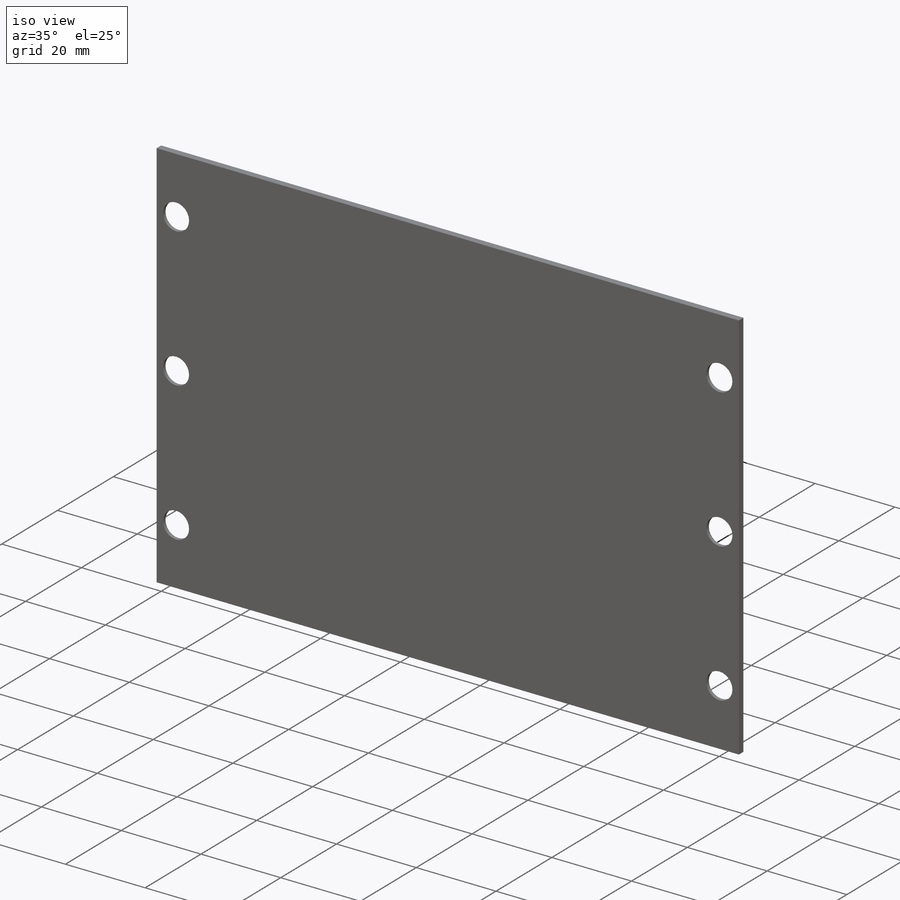
[diagram: iso view]
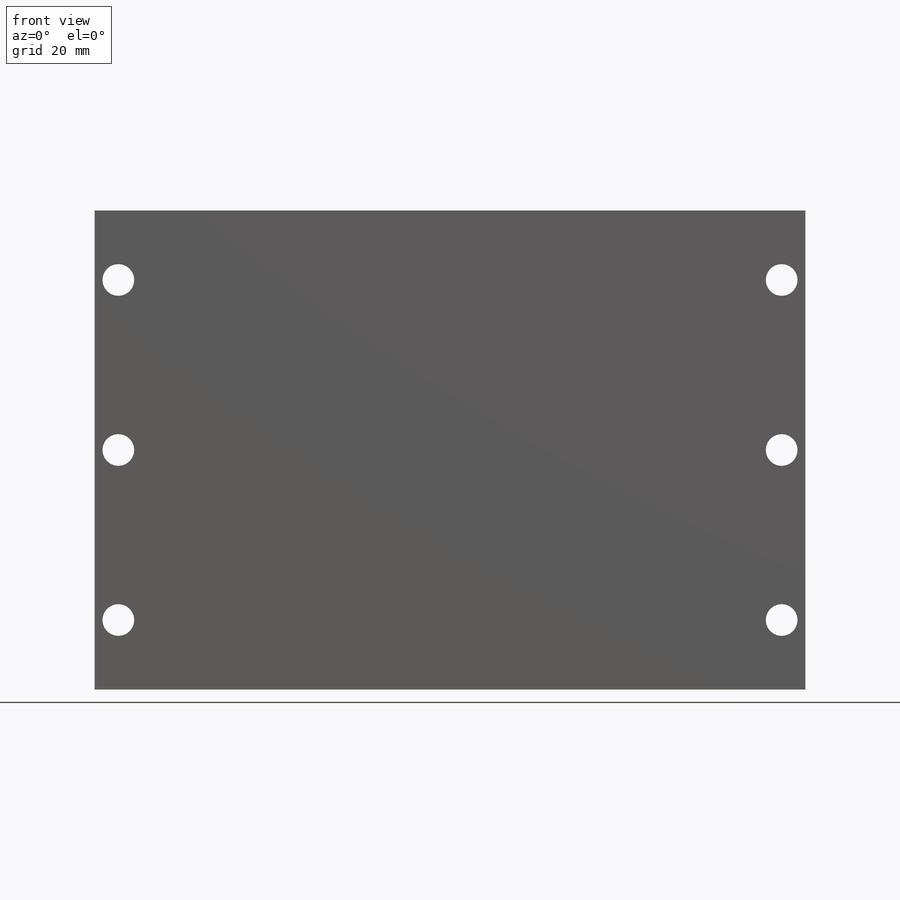
[diagram: front view]
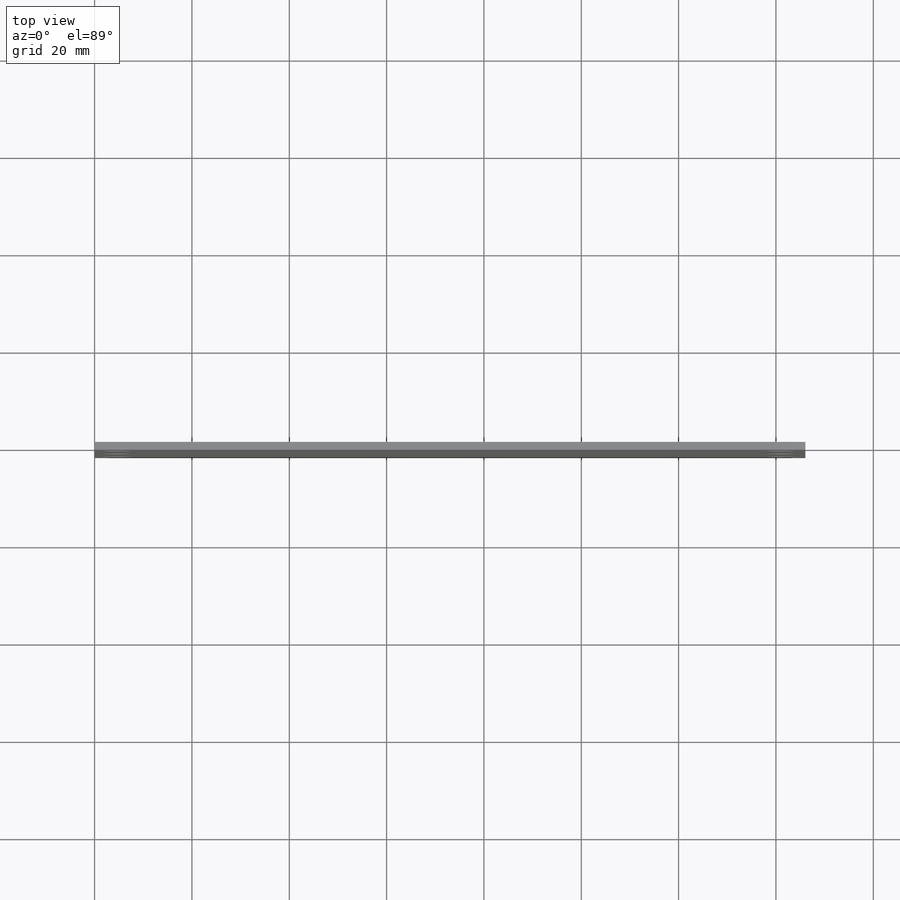
[diagram: top view]
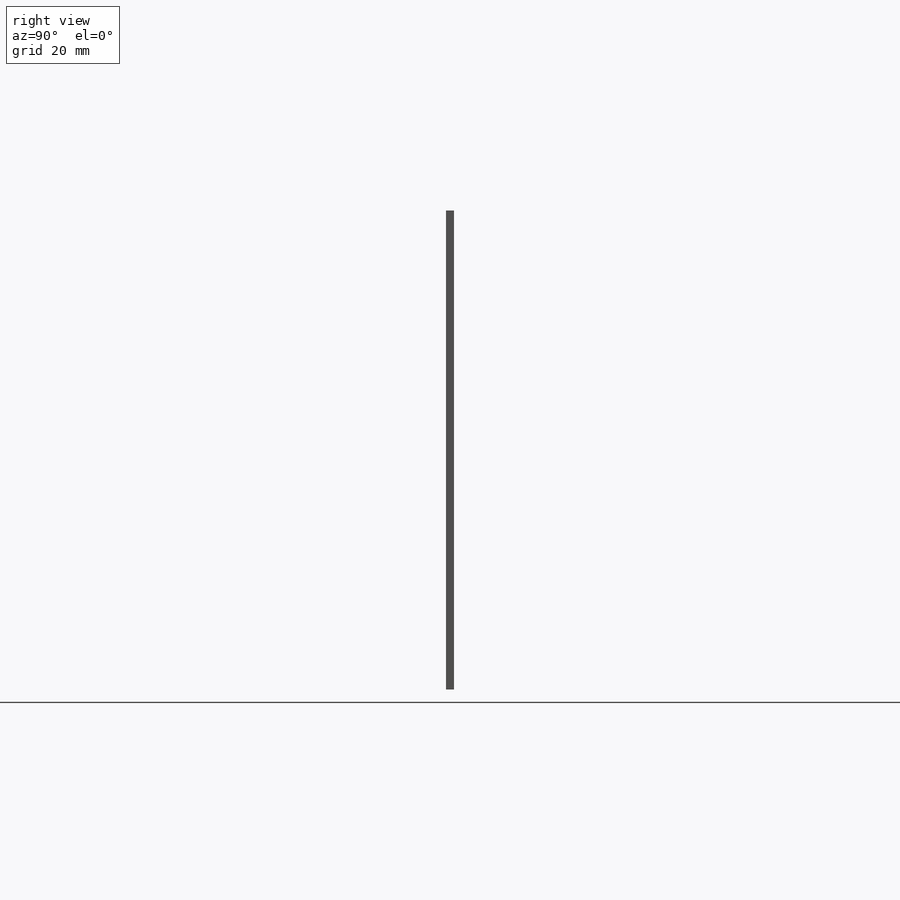
[diagram: right view]
SOLIDWORKS PART (.sldprt)
format: sldprt  version: not decoded by parser v0  size: 193,536 bytes
history: native  units: mm
features: sketch x3, cut_extrude x2, material x1, extrude x1 (+16 scaffold rows collapsed)
feature tree (23):
  scaffold x16  (default folders/planes/origin — collapsed)
  material  "Material <not specified>"
  sketch  "Sketch1"  dims[D1=146.05mm D2=98.425mm D3=4.8768mm D4=14.2748mm D5=14.2748mm]
  extrude  "Extrude1"  Depth=1.6256mm
  sketch  "Sketch2"  dims[c1.D5=6.5278mm c1.D6=6.5278mm c1.D7=6.5278mm c1.D8=6.5278mm c1.D9=6.5278mm c1.D10=6.5278mm c2.D9=6.5278mm c2.D10=6.5278mm c2.D11=~30.439973mm c2.D1=4.8768mm c2.D2=4.8768mm c2.D3=14.2748mm c2.D4=14.2748mm]
  cut_extrude  "Extrude2"  Depth=1.6256mm
  sketch  "Sketch3"  dims[D1=8.3312mm D2=8.3312mm D3=8.3312mm D4=8.3312mm D5=8.3312mm D6=8.3312mm]
  cut_extrude  "Extrude3"  Depth=1.6256mm
decode coverage: 6 of 6 modeling features carry decoded parameters
note: ~ marks probable driven/reference dimensions
note: suppression state not decoded; provenance and decode notes live in map.json
